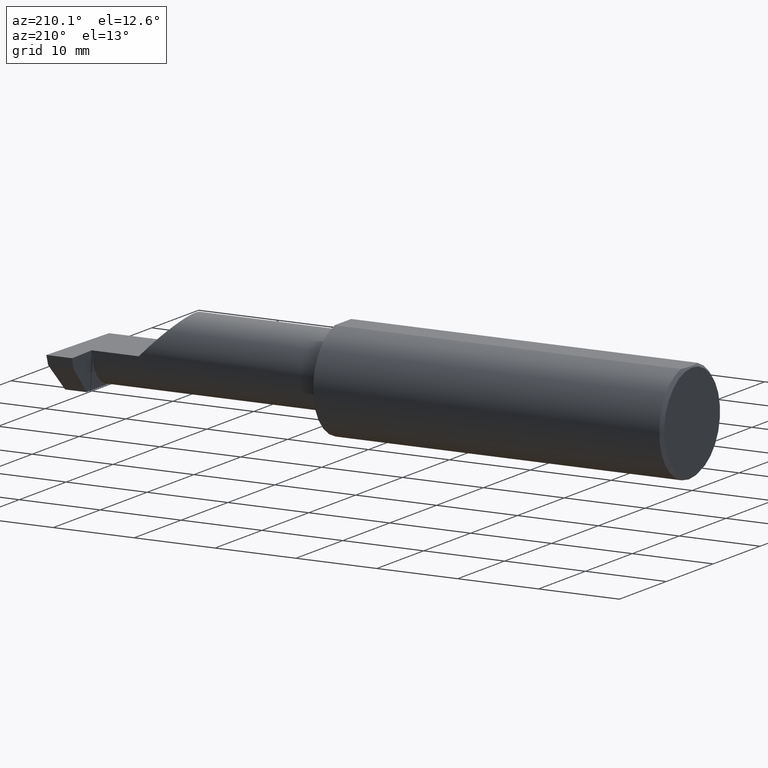
[diagram: clean part render]
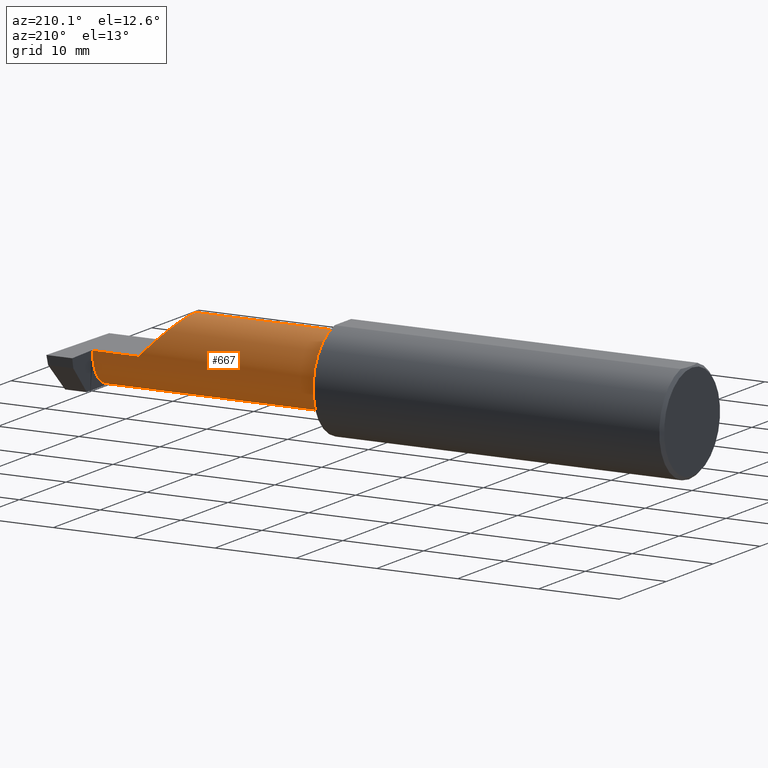
[diagram: same view with one face highlighted and labeled with its STEP entity id]
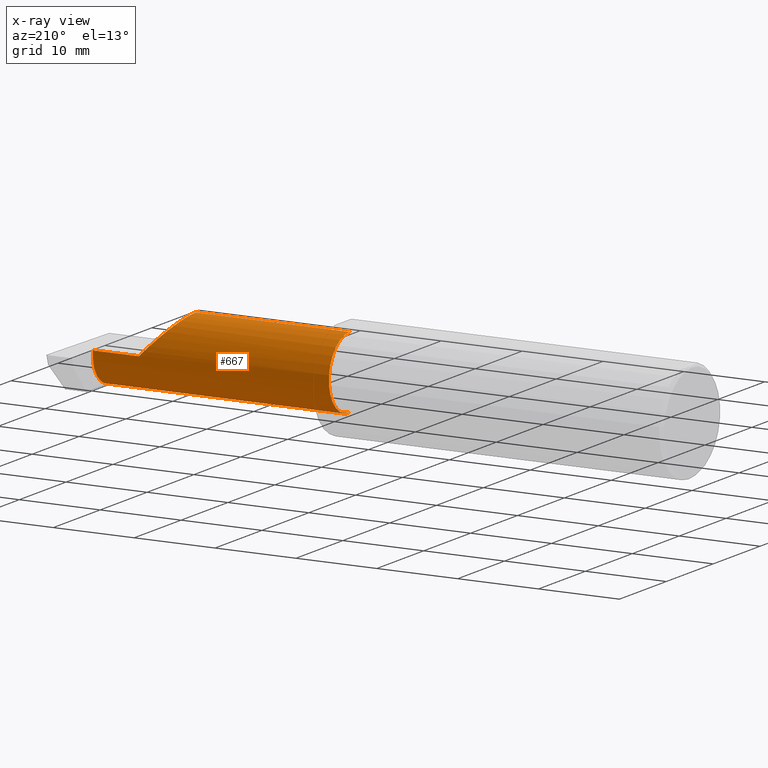
[diagram: x-ray of the same camera — body ghosted, the highlighted face saturated]
A machine part, auxiliary view. The second image highlights one B-rep face of the part: STEP entity #667.
The next image is the same camera in x-ray: the body ghosted, the highlighted face saturated — about 0% of this face is hidden behind the body in this view.
In plain terms, the highlighted cylindrical surface (partial cylindrical patch) has radius 4.445 mm, axis along (-1, -0, -0).
Its self-contained STEP definition (entity closure, byte-faithful):
#49 = CARTESIAN_POINT ( 'NONE',  ( 2.885036419112081862, -0.01887343476265496492, -0.1750000000000000444 ) ) ;
#55 = CARTESIAN_POINT ( 'NONE',  ( 2.650000000000000355, 0.07414999999999997982, 4.286263797015727350E-17 ) ) ;
#62 = VERTEX_POINT ( 'NONE', #642 ) ;
#67 = VERTEX_POINT ( 'NONE', #451 ) ;
#94 = CARTESIAN_POINT ( 'NONE',  ( 1.700000000000000178, -0.1008499999999999536, -0.1749999999999999889 ) ) ;
#101 = FACE_OUTER_BOUND ( 'NONE', #623, .T. ) ;
#107 = DIRECTION ( 'NONE',  ( -1.000000000000000000, -0.000000000000000000, -0.000000000000000000 ) ) ;
#109 = LINE ( 'NONE', #783, #740 ) ;
#111 = ORIENTED_EDGE ( 'NONE', *, *, #353, .F. ) ;
#114 = AXIS2_PLACEMENT_3D ( 'NONE', #622, #194, #615 ) ;
#129 = VECTOR ( 'NONE', #566, 39.37007874015748143 ) ;
#134 = CIRCLE ( 'NONE', #317, 0.1749999999999999889 ) ;
#139 = CARTESIAN_POINT ( 'NONE',  ( 2.875372681961405608, 0.07204909126152565790, -0.03119400421533637113 ) ) ;
#141 = EDGE_CURVE ( 'NONE', #487, #663, #519, .T. ) ;
#142 = CARTESIAN_POINT ( 'NONE',  ( 1.700000000000000178, 0.07414999999999997982, 1.592040838891556384E-16 ) ) ;
#159 = ORIENTED_EDGE ( 'NONE', *, *, #266, .F. ) ;
#194 = DIRECTION ( 'NONE',  ( -1.000000000000000000, -0.000000000000000000, -0.000000000000000000 ) ) ;
#212 = VERTEX_POINT ( 'NONE', #350 ) ;
#220 = ORIENTED_EDGE ( 'NONE', *, *, #700, .T. ) ;
#222 = DIRECTION ( 'NONE',  ( 0.000000000000000000, 0.000000000000000000, 1.000000000000000000 ) ) ;
#233 = VERTEX_POINT ( 'NONE', #305 ) ;
#235 = CARTESIAN_POINT ( 'NONE',  ( 2.475000000000001421, 0.001662626584708371512, 0.1749999999999999889 ) ) ;
#239 =( BOUNDED_CURVE ( )  B_SPLINE_CURVE ( 3, ( #601, #49, #665, #367 ),
 .UNSPECIFIED., .F., .T. ) 
 B_SPLINE_CURVE_WITH_KNOTS ( ( 4, 4 ),
 ( 3.140373936913444908, 4.443983221546777607 ),
 .UNSPECIFIED. ) 
 CURVE ( )  GEOMETRIC_REPRESENTATION_ITEM ( )  RATIONAL_B_SPLINE_CURVE ( ( 1.000000000000000000, 0.8633269052189371795, 0.8633269052189371795, 1.000000000000000000 ) ) 
 REPRESENTATION_ITEM ( '' )  );
#266 = EDGE_CURVE ( 'NONE', #487, #62, #239, .T. ) ;
#280 = EDGE_CURVE ( 'NONE', #67, #489, #109, .T. ) ;
#305 = CARTESIAN_POINT ( 'NONE',  ( 2.874000000000000110, 0.07414999999999997982, 1.592040656337303346E-16 ) ) ;
#308 = ORIENTED_EDGE ( 'NONE', *, *, #749, .T. ) ;
#317 = AXIS2_PLACEMENT_3D ( 'NONE', #658, #107, #358 ) ;
#325 = VERTEX_POINT ( 'NONE', #741 ) ;
#331 = ORIENTED_EDGE ( 'NONE', *, *, #141, .T. ) ;
#335 = CIRCLE ( 'NONE', #114, 0.1749999999999999889 ) ;
#341 = CARTESIAN_POINT ( 'NONE',  ( 2.874689495973013820, 0.07413112468343002748, -0.01577237022675150382 ) ) ;
#350 = CARTESIAN_POINT ( 'NONE',  ( 2.874000000000000110, 0.07414987299205305638, -0.0002108382441793307837 ) ) ;
#353 = EDGE_CURVE ( 'NONE', #489, #663, #335, .T. ) ;
#358 = DIRECTION ( 'NONE',  ( 0.000000000000000000, 0.000000000000000000, 1.000000000000000000 ) ) ;
#366 =( BOUNDED_CURVE ( )  B_SPLINE_CURVE ( 3, ( #650, #235, #718, #55 ),
 .UNSPECIFIED., .F., .F. ) 
 B_SPLINE_CURVE_WITH_KNOTS ( ( 4, 4 ),
 ( 0.000000000000000000, 1.570796326794896558 ),
 .UNSPECIFIED. ) 
 CURVE ( )  GEOMETRIC_REPRESENTATION_ITEM ( )  RATIONAL_B_SPLINE_CURVE ( ( 1.000000000000000000, 0.8047378541243649375, 0.8047378541243649375, 1.000000000000000000 ) ) 
 REPRESENTATION_ITEM ( '' )  );
#367 = CARTESIAN_POINT ( 'NONE',  ( 2.876037492458068279, 0.06794054266098323303, -0.04620338416404774079 ) ) ;
#395 = VECTOR ( 'NONE', #570, 39.37007874015748143 ) ;
#413 =( BOUNDED_CURVE ( )  B_SPLINE_CURVE ( 3, ( #507, #139, #341, #509 ),
 .UNSPECIFIED., .F., .T. ) 
 B_SPLINE_CURVE_WITH_KNOTS ( ( 4, 4 ),
 ( 4.443983221546778495, 4.709965478757016655 ),
 .UNSPECIFIED. ) 
 CURVE ( )  GEOMETRIC_REPRESENTATION_ITEM ( )  RATIONAL_B_SPLINE_CURVE ( ( 1.000000000000000000, 0.9941131374841131185, 0.9941131374841131185, 1.000000000000000000 ) ) 
 REPRESENTATION_ITEM ( '' )  );
#418 = EDGE_CURVE ( 'NONE', #62, #212, #413, .T. ) ;
#446 = AXIS2_PLACEMENT_3D ( 'NONE', #674, #776, #222 ) ;
#451 = CARTESIAN_POINT ( 'NONE',  ( 2.475000000000001421, -0.1008499999999999674, 0.1749999999999999889 ) ) ;
#472 = CARTESIAN_POINT ( 'NONE',  ( 1.725000000000000089, -0.1008499999999999536, -0.1749999999999999889 ) ) ;
#487 = VERTEX_POINT ( 'NONE', #569 ) ;
#489 = VERTEX_POINT ( 'NONE', #641 ) ;
#507 = CARTESIAN_POINT ( 'NONE',  ( 2.876037492458068279, 0.06794054266098323303, -0.04620338416404774079 ) ) ;
#509 = CARTESIAN_POINT ( 'NONE',  ( 2.874000000000000110, 0.07414987299205305638, -0.0002108382441793307837 ) ) ;
#519 = LINE ( 'NONE', #94, #395 ) ;
#545 = ORIENTED_EDGE ( 'NONE', *, *, #280, .F. ) ;
#566 = DIRECTION ( 'NONE',  ( 1.000000000000000000, 0.000000000000000000, 0.000000000000000000 ) ) ;
#569 = CARTESIAN_POINT ( 'NONE',  ( 2.885029432995152465, -0.1008500000000000091, -0.1749999999999999889 ) ) ;
#570 = DIRECTION ( 'NONE',  ( -1.000000000000000000, -0.000000000000000000, -0.000000000000000000 ) ) ;
#572 = LINE ( 'NONE', #142, #129 ) ;
#601 = CARTESIAN_POINT ( 'NONE',  ( 2.885029432995152465, -0.1008500000000000091, -0.1749999999999999889 ) ) ;
#615 = DIRECTION ( 'NONE',  ( 0.000000000000000000, 0.000000000000000000, 1.000000000000000000 ) ) ;
#622 = CARTESIAN_POINT ( 'NONE',  ( 1.725000000000000089, -0.1008499999999999674, 0.000000000000000000 ) ) ;
#623 = EDGE_LOOP ( 'NONE', ( #159, #331, #111, #545, #750, #308, #220, #784 ) ) ;
#641 = CARTESIAN_POINT ( 'NONE',  ( 1.725000000000000089, -0.1008499999999999674, 0.1749999999999999889 ) ) ;
#642 = CARTESIAN_POINT ( 'NONE',  ( 2.876037492458068279, 0.06794054266098323303, -0.04620338416404774079 ) ) ;
#650 = CARTESIAN_POINT ( 'NONE',  ( 2.475000000000001421, -0.1008499999999999674, 0.1749999999999999889 ) ) ;
#658 = CARTESIAN_POINT ( 'NONE',  ( 2.874000000000000110, -0.1008499999999999674, 0.000000000000000000 ) ) ;
#663 = VERTEX_POINT ( 'NONE', #472 ) ;
#665 = CARTESIAN_POINT ( 'NONE',  ( 2.881564601548835647, 0.04629714416892564965, -0.1252712066320194051 ) ) ;
#666 = EDGE_CURVE ( 'NONE', #67, #325, #366, .T. ) ;
#667 = ADVANCED_FACE ( 'NONE', ( #101 ), #714, .T. ) ;
#674 = CARTESIAN_POINT ( 'NONE',  ( 1.700000000000000178, -0.1008499999999999674, 0.000000000000000000 ) ) ;
#700 = EDGE_CURVE ( 'NONE', #233, #212, #134, .T. ) ;
#714 = CYLINDRICAL_SURFACE ( 'NONE', #446, 0.1749999999999999889 ) ;
#718 = CARTESIAN_POINT ( 'NONE',  ( 2.547487373415292744, 0.07414999999999996594, 0.1025126265847083745 ) ) ;
#724 = DIRECTION ( 'NONE',  ( -1.000000000000000000, -0.000000000000000000, -0.000000000000000000 ) ) ;
#740 = VECTOR ( 'NONE', #724, 39.37007874015748143 ) ;
#741 = CARTESIAN_POINT ( 'NONE',  ( 2.650000000000000355, 0.07414999999999997982, 4.286263797015727350E-17 ) ) ;
#749 = EDGE_CURVE ( 'NONE', #325, #233, #572, .T. ) ;
#750 = ORIENTED_EDGE ( 'NONE', *, *, #666, .T. ) ;
#776 = DIRECTION ( 'NONE',  ( -1.000000000000000000, -0.000000000000000000, -0.000000000000000000 ) ) ;
#783 = CARTESIAN_POINT ( 'NONE',  ( 1.700000000000000178, -0.1008499999999999674, 0.1749999999999999889 ) ) ;
#784 = ORIENTED_EDGE ( 'NONE', *, *, #418, .F. ) ;